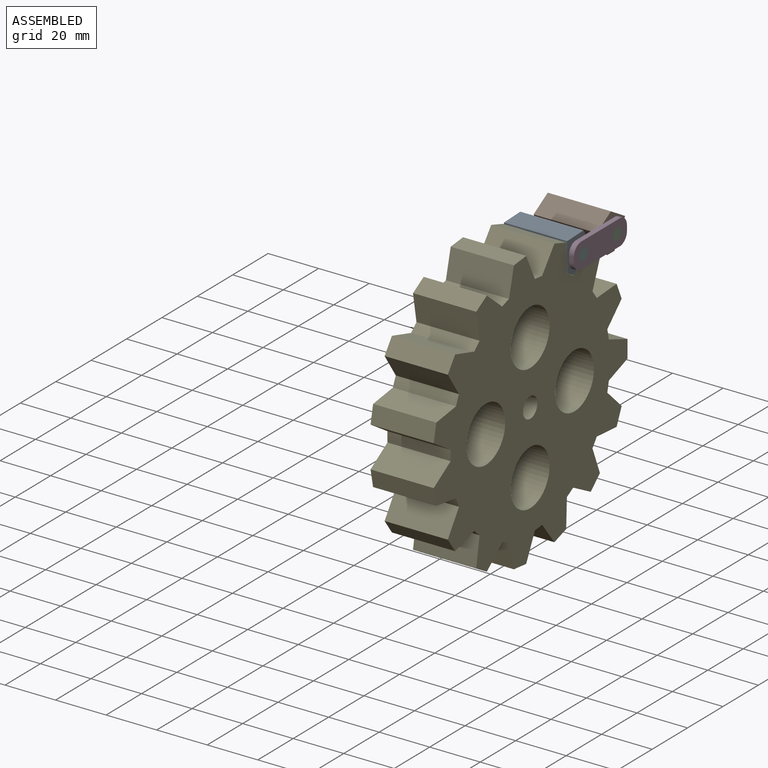
[diagram: assembled view]
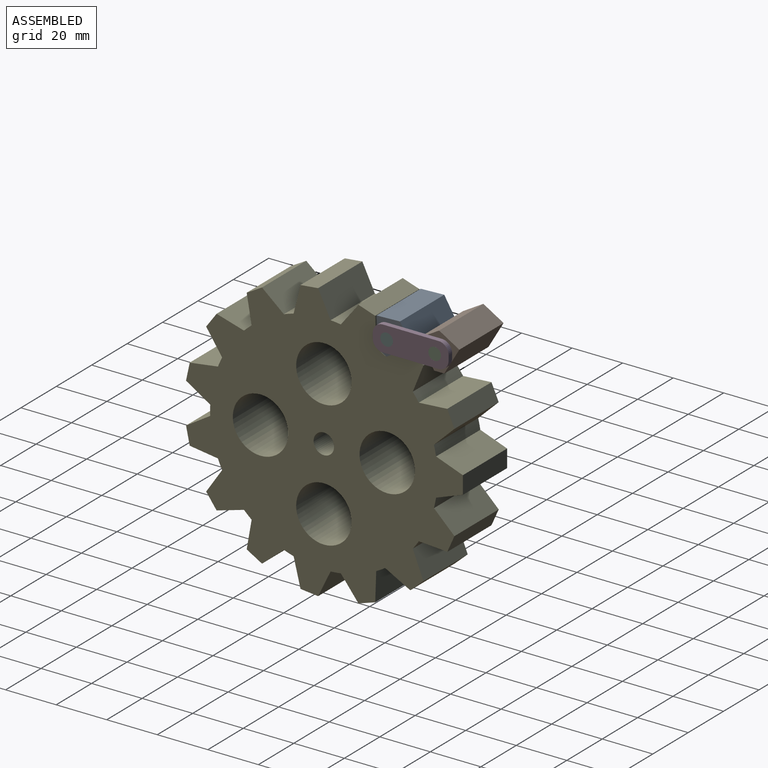
[diagram: assembled view, second angle]
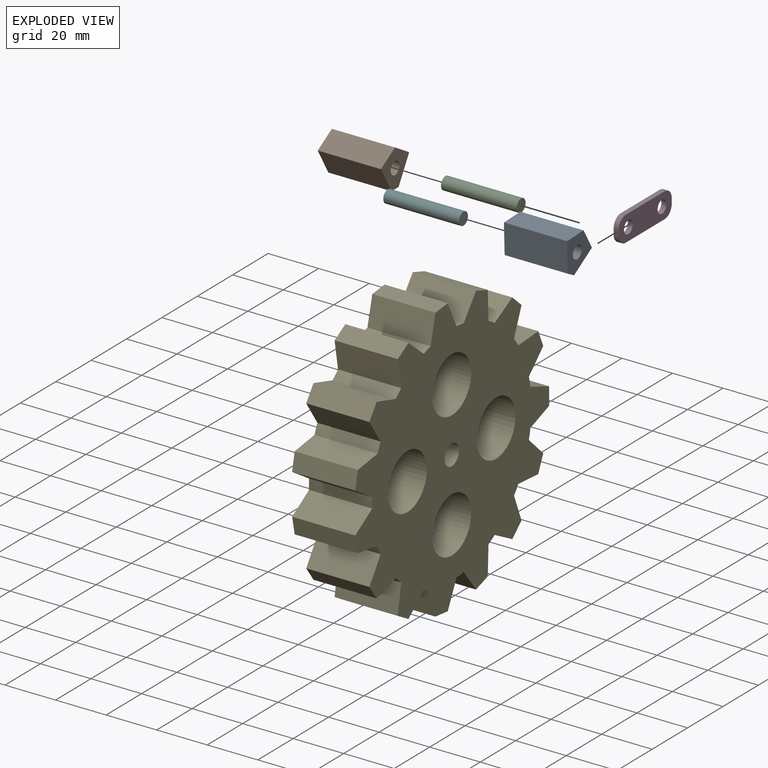
[diagram: exploded view]
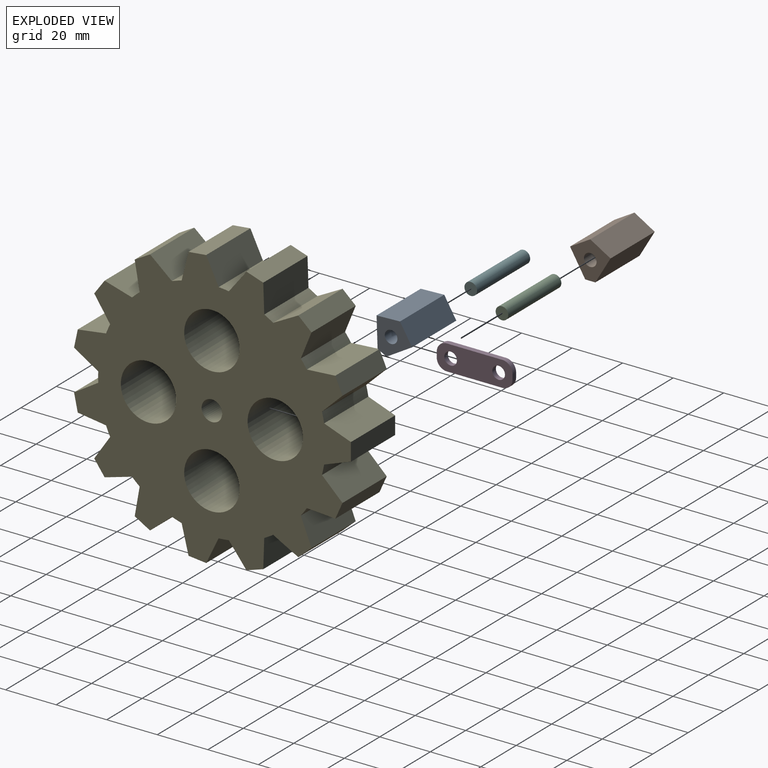
[diagram: exploded view, second angle]
ASSEMBLY  parts=6 mates=6
PART A: 8 faces, bbox 25x16x14.9 mm
  f0: plane 25x10.16mm, normal (0,0.86,-0.51), area 295mm2, adj f1,f4,f5,f6
  f1: plane 25x8mm, normal (0,0.51,0.86), area 232.3mm2, adj f0,f2,f5,f6
  f2: plane 25x8mm, normal (0,-0.51,0.86), area 232.3mm2, adj f1,f3,f5,f6
  f3: plane 25x10.16mm, normal (0,-0.86,-0.51), area 295mm2, adj f2,f4,f5,f6
  f4: plane 25x4mm, normal (0,0,-1), area 100mm2, adj f0,f3,f5,f6
  f5: plane 16x14.88mm, normal (1,0,0), area 119.8mm2, adj f0,f1,f2,f3,f4,f7
  f6: plane 16x14.88mm, normal (-1,0,0), area 119.8mm2, adj f0,f1,f2,f3,f4,f7
  f7: cylinder r=2.5mm len=25mm, axis (1,0,0), area 392.7mm2, adj f5,f6
PART B: same geometry as A
PART C: 3 faces, bbox 30x5x5 mm
  f0: cylinder r=2.5mm len=30mm, axis (-1,0,0), area 471.2mm2, adj f1,f2
  f1: plane 5x5mm, normal (1,0,0), area 19.6mm2, adj f0
  f2: plane 5x5mm, normal (-1,0,0), area 19.6mm2, adj f0
PART D: 12 faces, bbox 2x30x10 mm
  f0: plane 2x2mm, normal (0,1,0), area 4mm2, adj f4,f5,f8,f11
  f1: plane 22x2mm, normal (0,0,1), area 44mm2, adj f4,f5,f8,f9
  f2: plane 2x2mm, normal (0,-1,0), area 4mm2, adj f4,f5,f9,f10
  f3: plane 22x2mm, normal (0,0,-1), area 44mm2, adj f4,f5,f10,f11
  f4: plane 30x10mm, normal (1,0,0), area 247mm2, adj f0,f1,f2,f3,f6,f7,f8,f9
  f5: plane 30x10mm, normal (-1,0,0), area 247mm2, adj f0,f1,f2,f3,f6,f7,f8,f9
  f6: cylinder r=2.5mm len=5mm, axis (1,0,0), area 31.4mm2, adj f4,f5
  f7: cylinder r=2.5mm len=5mm, axis (1,0,0), area 31.4mm2, adj f4,f5
  f8: cylinder r=4mm len=4mm, axis (-1,0,0), area 12.6mm2, adj f0,f1,f4,f5
  f9: cylinder r=4mm len=4mm, axis (1,0,0), area 12.6mm2, adj f1,f2,f4,f5
  f10: cylinder r=4mm len=4mm, axis (-1,0,0), area 12.6mm2, adj f2,f3,f4,f5
  f11: cylinder r=4mm len=4mm, axis (1,0,0), area 12.6mm2, adj f0,f3,f4,f5
PART E: 67 faces, bbox 110.1x109.5x25 mm
  f0: plane 25x11.18mm, normal (0.99,-0.14,0), area 282.2mm2, adj f1,f59,f60,f61
  f1: cylinder r=45mm len=25mm, axis (0,0,-1), area 101.6mm2, adj f0,f2,f60,f61
  f2: plane 25x9.36mm, normal (-0.56,-0.83,0), area 282.2mm2, adj f1,f3,f60,f61
  f3: plane 25x5.66mm, normal (0.59,-0.81,0), area 175mm2, adj f2,f4,f60,f61
  f4: plane 25x10.85mm, normal (0.96,0.28,0), area 282.2mm2, adj f3,f5,f60,f61
  f5: cylinder r=45mm len=25mm, axis (0,0,-1), area 101.6mm2, adj f4,f6,f60,f61
  f6: plane 25x11.12mm, normal (-0.17,-0.98,0), area 282.2mm2, adj f5,f7,f60,f61
  f7: plane 25x6.06mm, normal (0.87,-0.5,0), area 175mm2, adj f6,f8,f60,f61
  f8: plane 25x8.65mm, normal (0.77,0.64,0), area 282.2mm2, adj f7,f9,f60,f61
  f9: cylinder r=45mm len=25mm, axis (0,0,-1), area 101.6mm2, adj f8,f10,f60,f61
  f10: plane 25x10.95mm, normal (0.24,-0.97,0), area 282.2mm2, adj f9,f11,f60,f61
  f11: plane 25x6.96mm, normal (0.99,-0.1,0), area 175mm2, adj f10,f12,f60,f61
  f12: plane 25x10.14mm, normal (0.44,0.9,0), area 282.2mm2, adj f11,f13,f60,f61
  f13: cylinder r=45mm len=25mm, axis (0,0,-1), area 101.6mm2, adj f12,f14,f60,f61
  f14: plane 25x8.89mm, normal (0.62,-0.79,0), area 282.2mm2, adj f13,f15,f60,f61
  f15: plane 25x6.66mm, normal (0.95,0.31,0), area 175mm2, adj f14,f16,f60,f61
  f16: plane 25x11.28mm, normal (0.03,1,0), area 282.2mm2, adj f15,f17,f60,f61
  f17: cylinder r=45mm len=25mm, axis (0,0,-1), area 101.6mm2, adj f16,f18,f60,f61
  f18: plane 25x9.97mm, normal (0.88,-0.47,0), area 282.2mm2, adj f17,f19,f60,f61
  f19: plane 25x5.2mm, normal (0.74,0.67,0), area 175mm2, adj f18,f20,f60,f61
  f20: plane 25x10.47mm, normal (-0.37,0.93,0), area 282.2mm2, adj f19,f21,f60,f61
  f21: cylinder r=45mm len=25mm, axis (0,0,-1), area 101.6mm2, adj f20,f22,f60,f61
  f22: plane 25x11.26mm, normal (1,-0.07,0), area 282.2mm2, adj f21,f23,f60,f61
  f23: plane 25x6.4mm, normal (0.41,0.91,0), area 175mm2, adj f22,f24,f60,f61
  f24: plane 25x8.12mm, normal (-0.72,0.69,0), area 282.2mm2, adj f23,f25,f60,f61
  f25: cylinder r=45mm len=25mm, axis (0,0,-1), area 101.6mm2, adj f24,f26,f60,f61
  f26: plane 25x10.61mm, normal (0.94,0.34,0), area 282.2mm2, adj f25,f27,f60,f61
  f27: plane 25x7mm, normal (0,1,0), area 175mm2, adj f26,f28,f60,f61
  f28: plane 25x10.61mm, normal (-0.94,0.34,0), area 282.2mm2, adj f27,f29,f60,f61
  f29: cylinder r=45mm len=25mm, axis (0,0,-1), area 101.6mm2, adj f28,f30,f60,f61
  f30: plane 25x8.12mm, normal (0.72,0.69,0), area 282.2mm2, adj f29,f31,f60,f61
  f31: plane 25x6.4mm, normal (-0.41,0.91,0), area 175mm2, adj f30,f32,f60,f61
  f32: plane 25x11.26mm, normal (-1,-0.07,0), area 282.2mm2, adj f31,f33,f60,f61
  f33: cylinder r=45mm len=25mm, axis (0,0,-1), area 101.6mm2, adj f32,f34,f60,f61
  f34: plane 25x10.47mm, normal (0.37,0.93,0), area 282.2mm2, adj f33,f35,f60,f61
  f35: plane 25x5.2mm, normal (-0.74,0.67,0), area 175mm2, adj f34,f36,f60,f61
  f36: plane 25x9.97mm, normal (-0.88,-0.47,0), area 282.2mm2, adj f35,f37,f60,f61
  f37: cylinder r=45mm len=25mm, axis (0,0,-1), area 101.6mm2, adj f36,f38,f60,f61
  f38: plane 25x11.28mm, normal (-0.03,1,0), area 282.2mm2, adj f37,f39,f60,f61
  f39: plane 25x6.66mm, normal (-0.95,0.31,0), area 175mm2, adj f38,f40,f60,f61
  f40: plane 25x8.89mm, normal (-0.62,-0.79,0), area 282.2mm2, adj f39,f41,f60,f61
  f41: cylinder r=45mm len=25mm, axis (0,0,-1), area 101.6mm2, adj f40,f42,f60,f61
  f42: plane 25x10.14mm, normal (-0.44,0.9,0), area 282.2mm2, adj f41,f43,f60,f61
  f43: plane 25x6.96mm, normal (-0.99,-0.1,0), area 175mm2, adj f42,f44,f60,f61
  f44: plane 25x10.95mm, normal (-0.24,-0.97,0), area 282.2mm2, adj f43,f45,f60,f61
  f45: cylinder r=45mm len=25mm, axis (0,0,-1), area 101.6mm2, adj f44,f46,f60,f61
  f46: plane 25x8.65mm, normal (-0.77,0.64,0), area 282.2mm2, adj f45,f47,f60,f61
  f47: plane 25x6.06mm, normal (-0.87,-0.5,0), area 175mm2, adj f46,f48,f60,f61
  f48: plane 25x11.12mm, normal (0.17,-0.98,0), area 282.2mm2, adj f47,f49,f60,f61
  f49: cylinder r=45mm len=25mm, axis (0,0,-1), area 101.6mm2, adj f48,f50,f60,f61
  f50: plane 25x10.85mm, normal (-0.96,0.28,0), area 282.2mm2, adj f49,f51,f60,f61
  f51: plane 25x5.66mm, normal (-0.59,-0.81,0), area 175mm2, adj f50,f52,f60,f61
  f52: plane 25x9.36mm, normal (0.56,-0.83,0), area 282.2mm2, adj f51,f53,f60,f61
  f53: cylinder r=45mm len=25mm, axis (0,0,-1), area 101.6mm2, adj f52,f54,f60,f61
  f54: plane 25x11.18mm, normal (-0.99,-0.14,0), area 282.2mm2, adj f53,f55,f60,f61
  f55: plane 25x6.85mm, normal (-0.21,-0.98,0), area 175mm2, adj f54,f56,f60,f61
  f56: plane 25x9.57mm, normal (0.85,-0.53,0), area 282.2mm2, adj f55,f57,f60,f61
  f57: cylinder r=45mm len=25mm, axis (0,0,-1), area 101.6mm2, adj f56,f58,f60,f61
  f58: plane 25x9.57mm, normal (-0.85,-0.53,0), area 282.2mm2, adj f57,f59,f60,f61
  f59: plane 25x6.85mm, normal (0.21,-0.98,0), area 175mm2, adj f0,f58,f60,f61
  f60: plane 110.13x109.53mm, normal (0,0,1), area 6438.1mm2, adj f0,f1,f2,f3,f4,f5,f6,f7
  f61: plane 110.13x109.53mm, normal (0,0,-1), area 6438.1mm2, adj f0,f1,f2,f3,f4,f5,f6,f7
  f62: cylinder r=10.96mm len=25mm, axis (0,0,1), area 1722.2mm2, adj f60,f61
  f63: cylinder r=10.96mm len=25mm, axis (0,0,1), area 1722.2mm2, adj f60,f61
  f64: cylinder r=4.05mm len=25mm, axis (0,0,1), area 636.2mm2, adj f60,f61
  f65: cylinder r=10.96mm len=25mm, axis (0,0,1), area 1722.2mm2, adj f60,f61
  f66: cylinder r=10.96mm len=25mm, axis (0,0,1), area 1722.2mm2, adj f60,f61
PART F: same geometry as C
PLACE A rot(axis=(-1,0,0),28.6deg) t=(-115.31,136.54,4.89)mm
PLACE B t=(-115.31,154.27,5.21)mm
PLACE C t=(-117.81,154.27,2.55)mm
PLACE D t=(-89.81,144.77,2.55)mm
PLACE E rot(axis=(0,1,0),90deg) t=(-115.31,108.66,-42.79)mm
PLACE F t=(-117.81,135.27,2.55)mm
MATE revolute C.f0 <-> D.f7  axis (1,0,0) through (-87.81,154.27,2.55)mm
MATE revolute B.f7 <-> C.f0  axis (1,0,0) through (-102.81,154.27,2.55)mm
MATE revolute F.f0 <-> D.f6  axis (1,0,0) through (-87.81,135.27,2.55)mm
MATE slider A.f3 <-> E.f38  axis (0,-1,-0.03) through (-102.81,129.72,2.82)mm
MATE slider A.f3 <-> E.f38  axis (0,-1,-0.03) through (-102.81,129.72,2.82)mm
MATE revolute A.f7 <-> F.f0  axis (1,0,0) through (-102.81,135.27,2.55)mm
